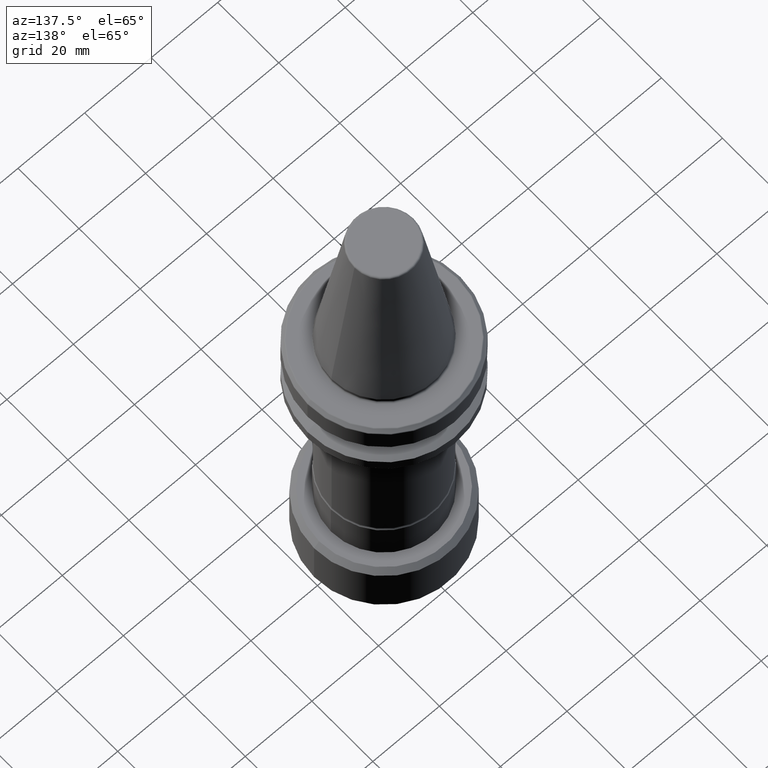
[diagram: clean part render]
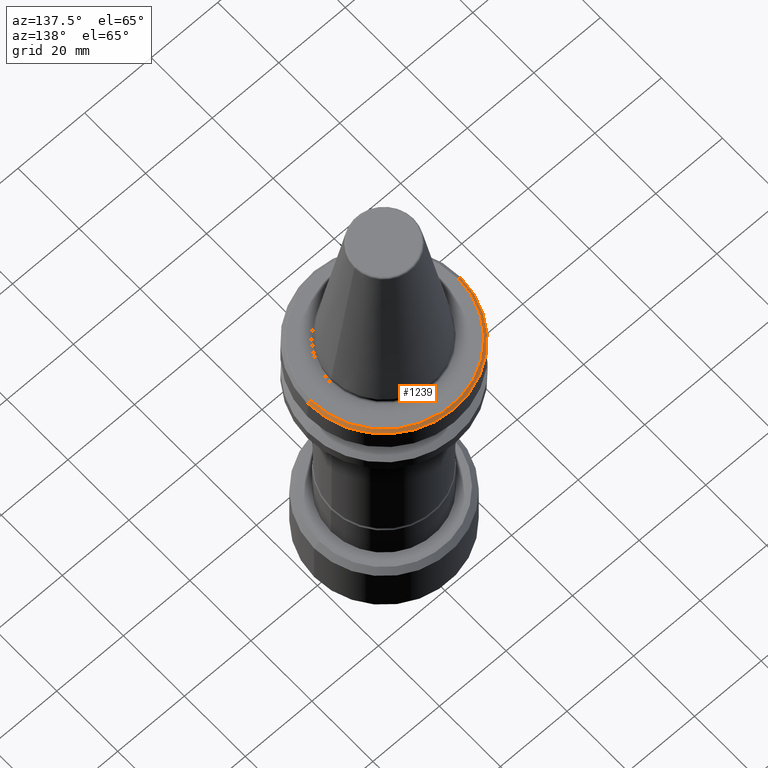
[diagram: same view with one face highlighted and labeled with its STEP entity id]
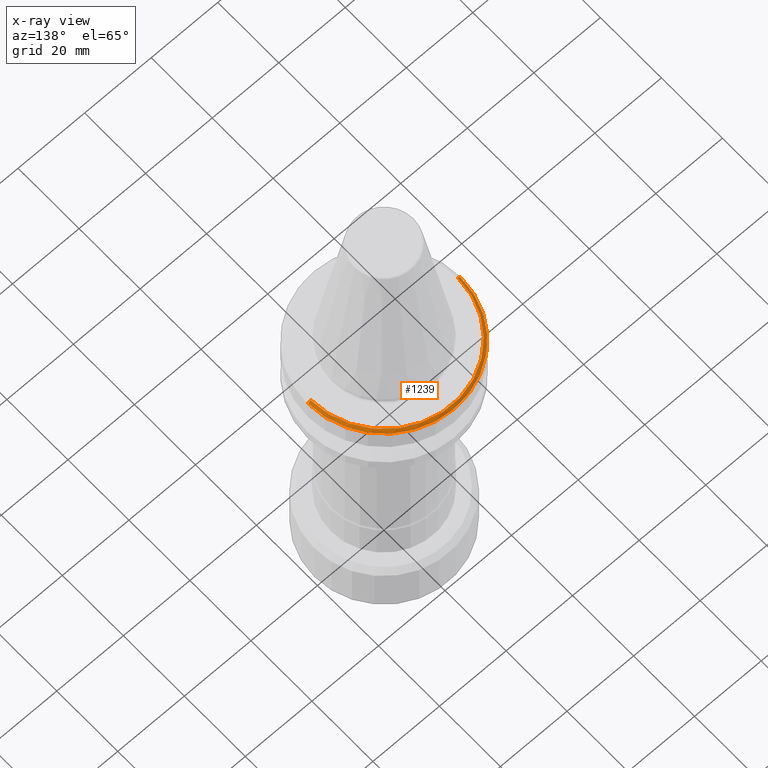
[diagram: x-ray of the same camera — body ghosted, the highlighted face saturated]
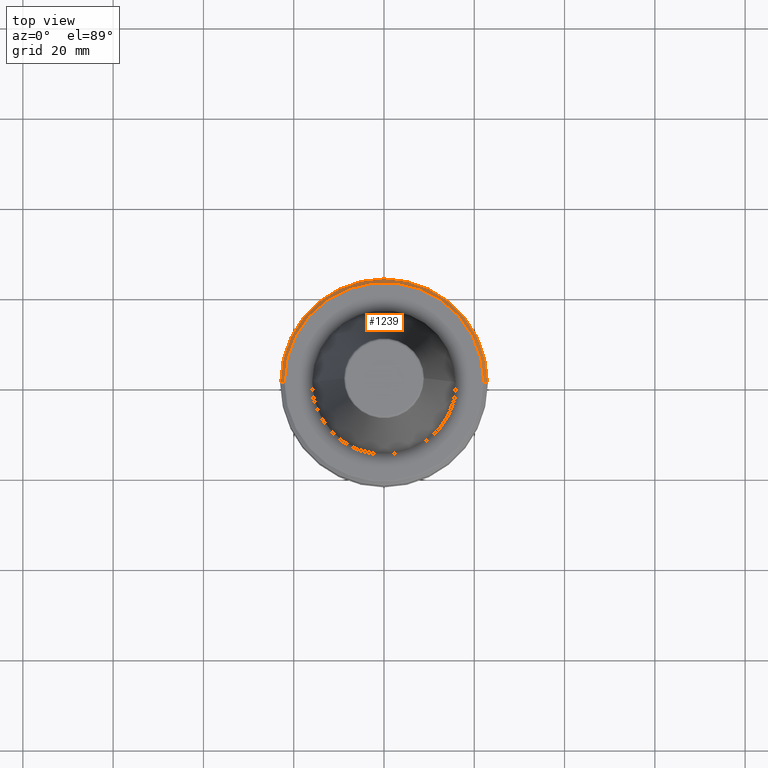
[diagram: same view with one face highlighted and labeled with its STEP entity id]
A machine part, auxiliary view. The second image highlights one B-rep face of the part: STEP entity #1239.
The next image is the same camera in x-ray: the body ghosted, the highlighted face saturated — about 0% of this face is hidden behind the body in this view.
A second angle (top view) of the same face is appended — the face is thin or edge-on in the first view.
In plain terms, the highlighted conical surface has half-angle 45 deg.
Its self-contained STEP definition (entity closure, byte-faithful):
#49 = DIRECTION ( 'NONE',  ( -0.0000000000000000000, -0.0000000000000000000, 1.000000000000000000 ) ) ;
#136 = CIRCLE ( 'NONE', #441, 22.88284271247462000 ) ;
#168 = AXIS2_PLACEMENT_3D ( 'NONE', #571, #1338, #689 ) ;
#174 = CIRCLE ( 'NONE', #168, 22.11715728752538000 ) ;
#224 = CARTESIAN_POINT ( 'NONE',  ( -22.11715728752538000, 0.0000000000000000000, -2.117157287525386800 ) ) ;
#302 = FACE_OUTER_BOUND ( 'NONE', #1222, .T. ) ;
#421 = CARTESIAN_POINT ( 'NONE',  ( -22.11715728752538000, 0.0000000000000000000, -2.117157287525386800 ) ) ;
#426 = DIRECTION ( 'NONE',  ( -0.7071067811865522400, 0.0000000000000000000, -0.7071067811865428000 ) ) ;
#441 = AXIS2_PLACEMENT_3D ( 'NONE', #585, #49, #825 ) ;
#519 = CARTESIAN_POINT ( 'NONE',  ( 0.0000000000000000000, 0.0000000000000000000, -2.117157287525386800 ) ) ;
#571 = CARTESIAN_POINT ( 'NONE',  ( 0.0000000000000000000, 0.0000000000000000000, -2.117157287525386800 ) ) ;
#580 = CARTESIAN_POINT ( 'NONE',  ( -22.88284271247462000, 0.0000000000000000000, -2.882842712474617700 ) ) ;
#584 = ORIENTED_EDGE ( 'NONE', *, *, #939, .T. ) ;
#585 = CARTESIAN_POINT ( 'NONE',  ( 0.0000000000000000000, 0.0000000000000000000, -2.882842712474617700 ) ) ;
#643 = VERTEX_POINT ( 'NONE', #1278 ) ;
#672 = VECTOR ( 'NONE', #426, 1000.000000000000000 ) ;
#689 = DIRECTION ( 'NONE',  ( 1.000000000000000000, 0.0000000000000000000, 0.0000000000000000000 ) ) ;
#729 = VERTEX_POINT ( 'NONE', #224 ) ;
#750 = VERTEX_POINT ( 'NONE', #580 ) ;
#751 = VECTOR ( 'NONE', #1012, 1000.000000000000000 ) ;
#825 = DIRECTION ( 'NONE',  ( 1.000000000000000000, 0.0000000000000000000, 0.0000000000000000000 ) ) ;
#841 = EDGE_CURVE ( 'NONE', #729, #750, #956, .T. ) ;
#864 = ORIENTED_EDGE ( 'NONE', *, *, #940, .F. ) ;
#939 = EDGE_CURVE ( 'NONE', #643, #1326, #1046, .T. ) ;
#940 = EDGE_CURVE ( 'NONE', #643, #729, #174, .T. ) ;
#956 = LINE ( 'NONE', #421, #672 ) ;
#1012 = DIRECTION ( 'NONE',  ( 0.7071067811865522400, 8.659560562354990800E-017, -0.7071067811865428000 ) ) ;
#1042 = ORIENTED_EDGE ( 'NONE', *, *, #841, .F. ) ;
#1046 = LINE ( 'NONE', #1149, #751 ) ;
#1077 = DIRECTION ( 'NONE',  ( 0.0000000000000000000, 0.0000000000000000000, -1.000000000000000000 ) ) ;
#1086 = CARTESIAN_POINT ( 'NONE',  ( 22.88284271247462000, 2.802340008322438500E-015, -2.882842712474617700 ) ) ;
#1097 = EDGE_CURVE ( 'NONE', #1326, #750, #136, .T. ) ;
#1127 = CONICAL_SURFACE ( 'NONE', #1210, 22.11715728752538000, 0.7853981633974549400 ) ;
#1149 = CARTESIAN_POINT ( 'NONE',  ( 22.11715728752538000, 2.708570587840651500E-015, -2.117157287525386800 ) ) ;
#1193 = DIRECTION ( 'NONE',  ( -1.000000000000000000, 0.0000000000000000000, 0.0000000000000000000 ) ) ;
#1210 = AXIS2_PLACEMENT_3D ( 'NONE', #519, #1077, #1193 ) ;
#1222 = EDGE_LOOP ( 'NONE', ( #864, #584, #1287, #1042 ) ) ;
#1239 = ADVANCED_FACE ( 'NONE', ( #302 ), #1127, .T. ) ;
#1278 = CARTESIAN_POINT ( 'NONE',  ( 22.11715728752538000, 2.755455298081544800E-015, -2.117157287525386800 ) ) ;
#1287 = ORIENTED_EDGE ( 'NONE', *, *, #1097, .T. ) ;
#1326 = VERTEX_POINT ( 'NONE', #1086 ) ;
#1338 = DIRECTION ( 'NONE',  ( -0.0000000000000000000, -0.0000000000000000000, 1.000000000000000000 ) ) ;